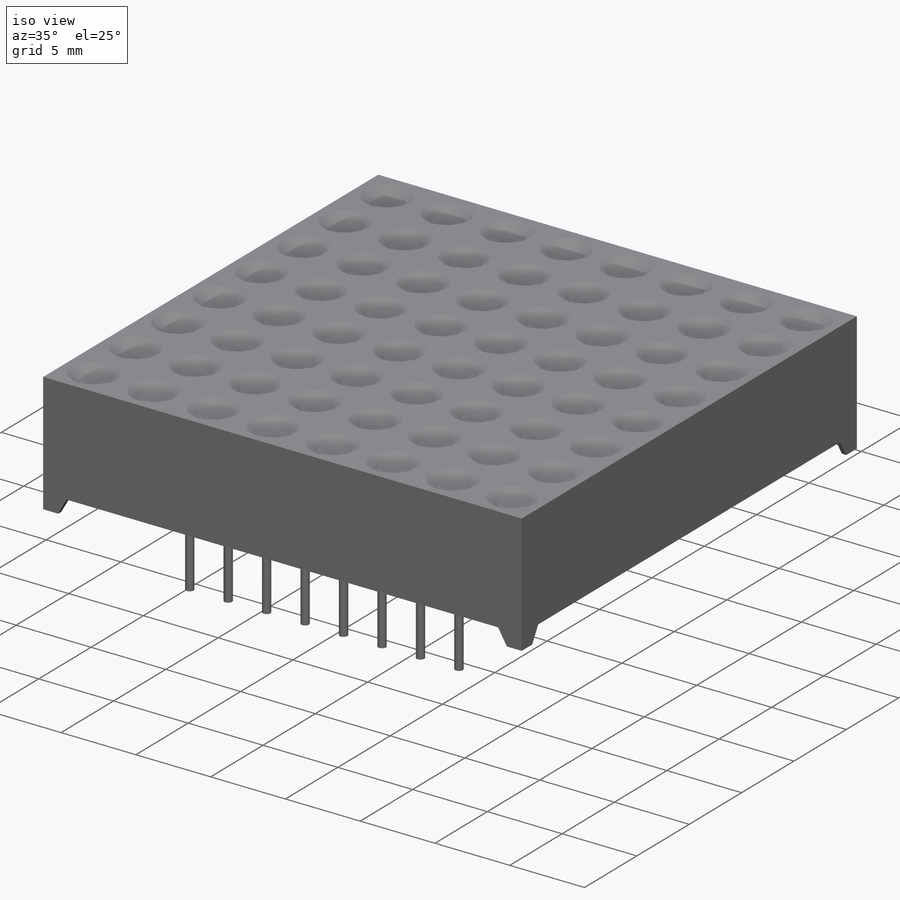
[diagram: iso view]
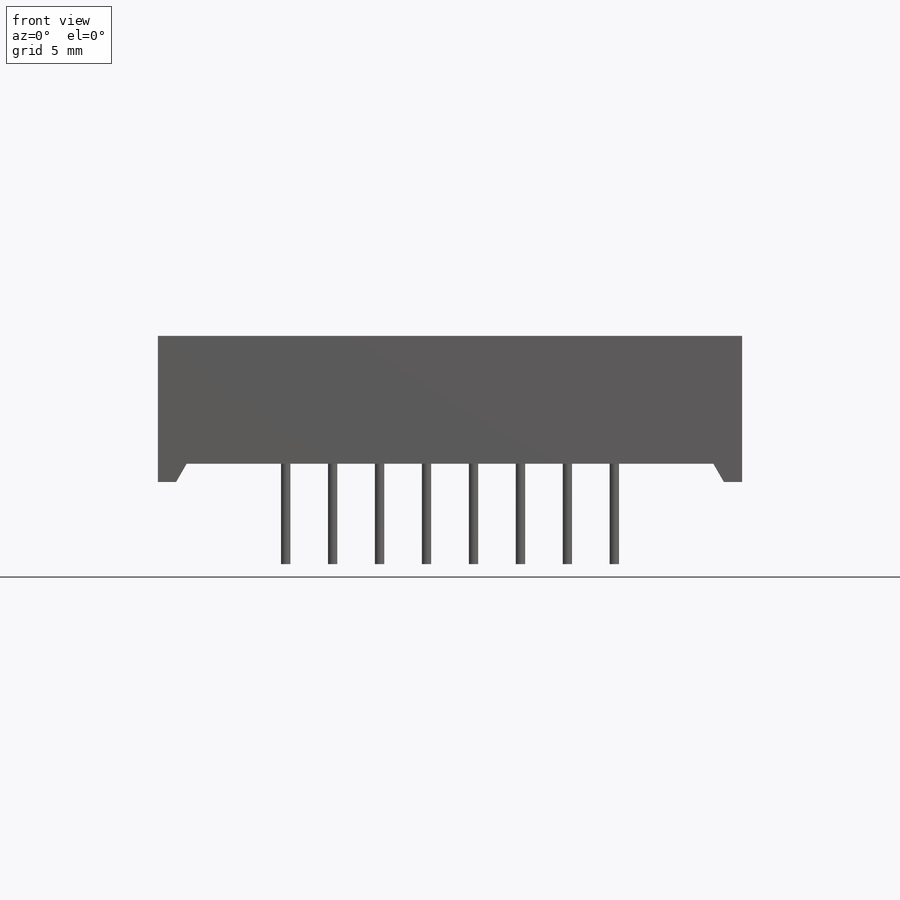
[diagram: front view]
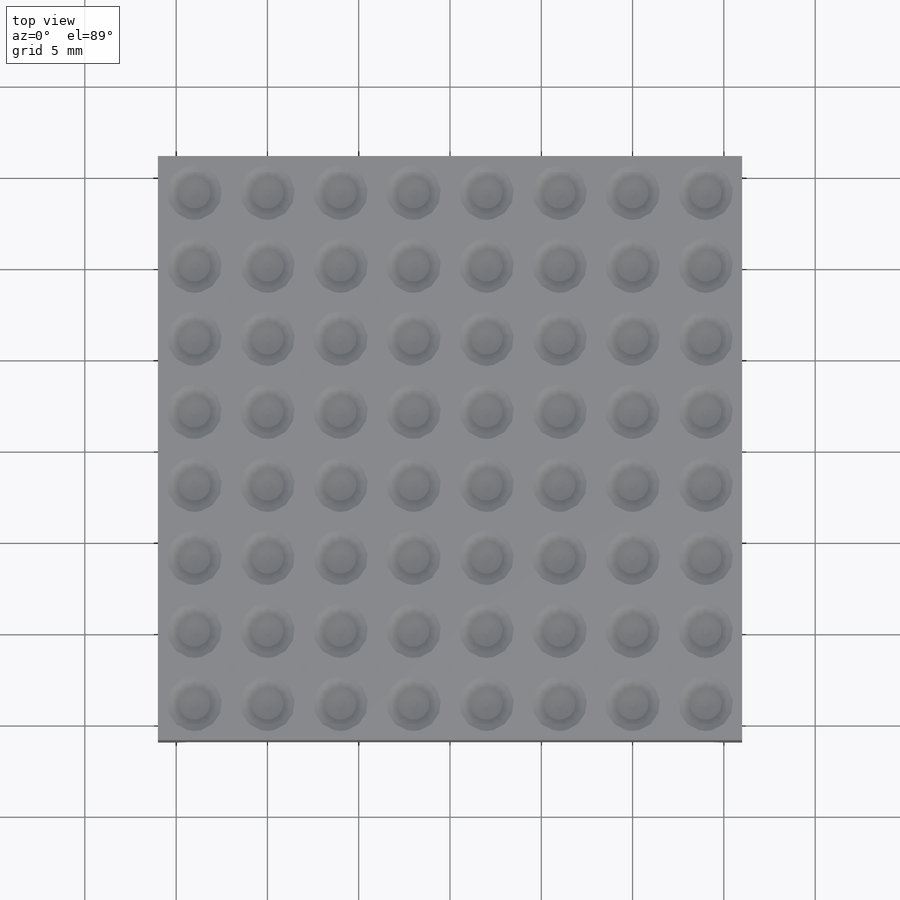
[diagram: top view]
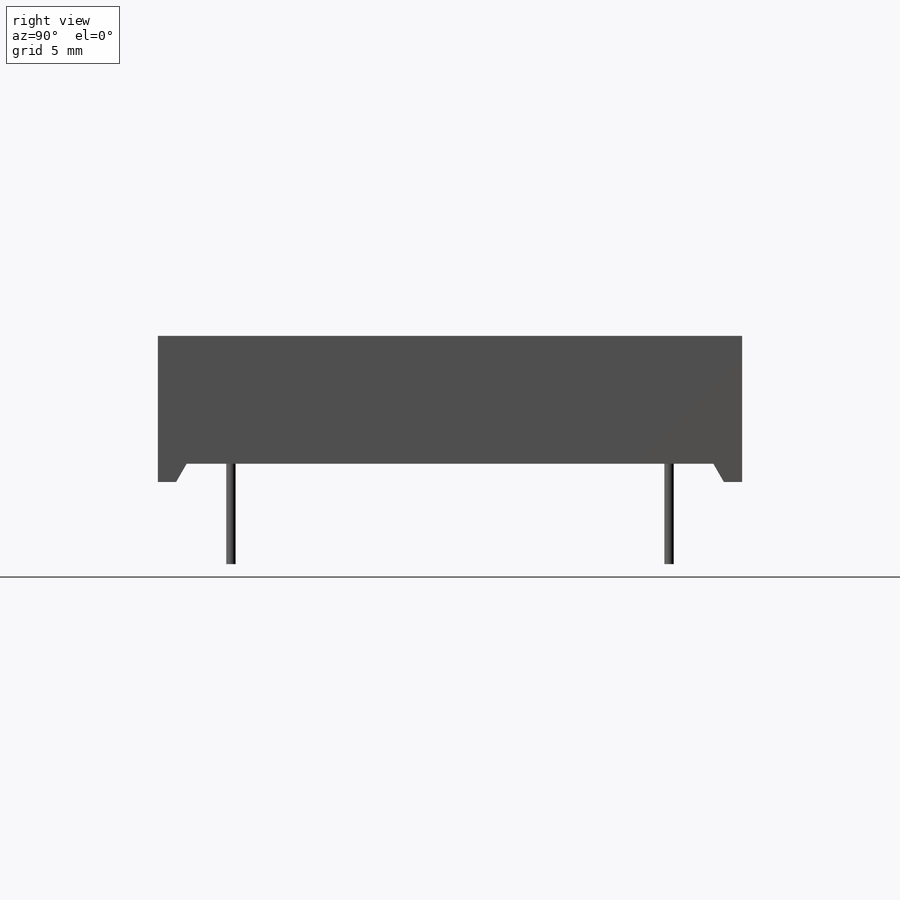
[diagram: right view]
SOLIDWORKS PART (.sldprt)
format: sldprt  version: not decoded by parser v0  size: 719,360 bytes
history: native  units: mm
features: sketch x6, cut_extrude x4, extrude x2, material x1, fillet x1 (+11 scaffold rows collapsed)
feature tree (25):
  scaffold x11  (default folders/planes/origin — collapsed)
  material  "Material <not specified>"
  sketch  "Sketch1"  dims[D1=32.0mm]
  extrude  "Boss-Extrude1"  Depth=8mm
  sketch  "Sketch2"  dims[D1=0.3mm D2=0.3mm]
  cut_extrude  "Cut-Extrude1"  Depth=1.5mm
  sketch  "Sketch3"  dims[c1.D1=1.0mm c1.D2=~1.050056mm c2.D2=60.0deg c2.D3=1.0mm]
  cut_extrude  "Cut-Extrude2"  [1 undecoded]
  sketch  "Sketch4"  dims[c1.D1=~1.787489mm c2.D1=60.0deg c2.D2=1.0mm c2.D3=1.0mm]
  cut_extrude  "Cut-Extrude3"  [1 undecoded]
  sketch  "Sketch5"  dims[c1.D1=3.0mm c1.D2=3.0mm c1.D3=3.0mm c2.D2=14.0mm c2.D3=14.0mm c2.D6=2.0mm c2.D7=6.0mm c3.D6=2.0mm c3.D7=6.0mm c3.D4=8.0 c3.D5=8.0]
  cut_extrude  "Cut-Extrude4"  Depth=0.5mm
  fillet  "Fillet1"  Radius=2mm
  sketch  "Sketch6"  dims[c1.D1=0.51mm c1.D2=0.51mm c1.D3=0.51mm c1.D7=0.51mm c1.D8=0.51mm c2.D2=9.0mm c2.D3=12.0mm c2.D6=9.0mm c2.D7=9.0mm c2.D8=~2.571429mm c2.D9=12.0mm c2.D4=8.0 c2.D5=2.0]
  extrude  "Boss-Extrude2"  Depth=6mm
decode coverage: 11 of 13 modeling features carry decoded parameters
note: ~ marks probable driven/reference dimensions
note: 2 parameter values undecoded
note: suppression state not decoded; provenance and decode notes live in map.json
